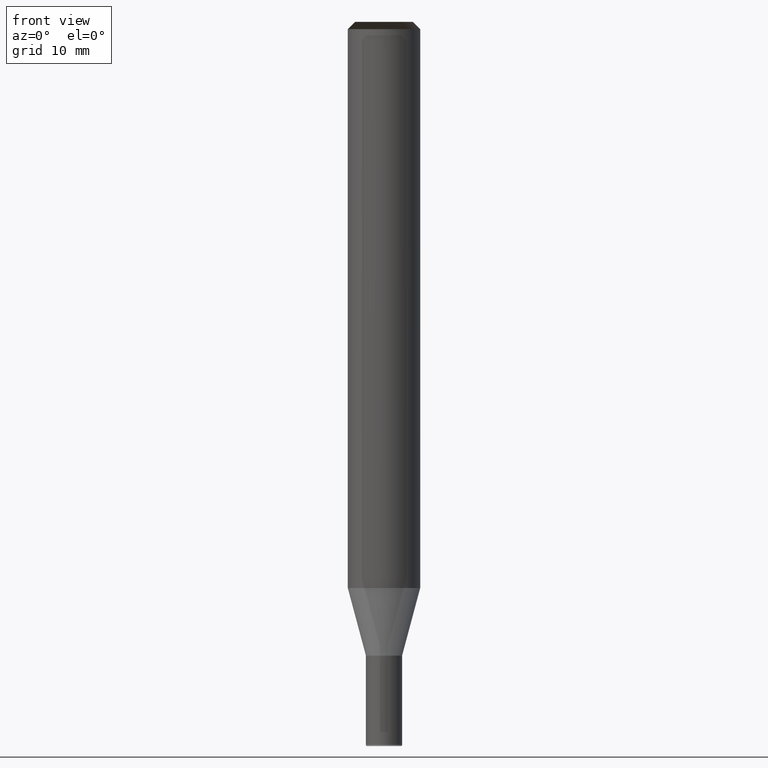
[diagram: clean part render]
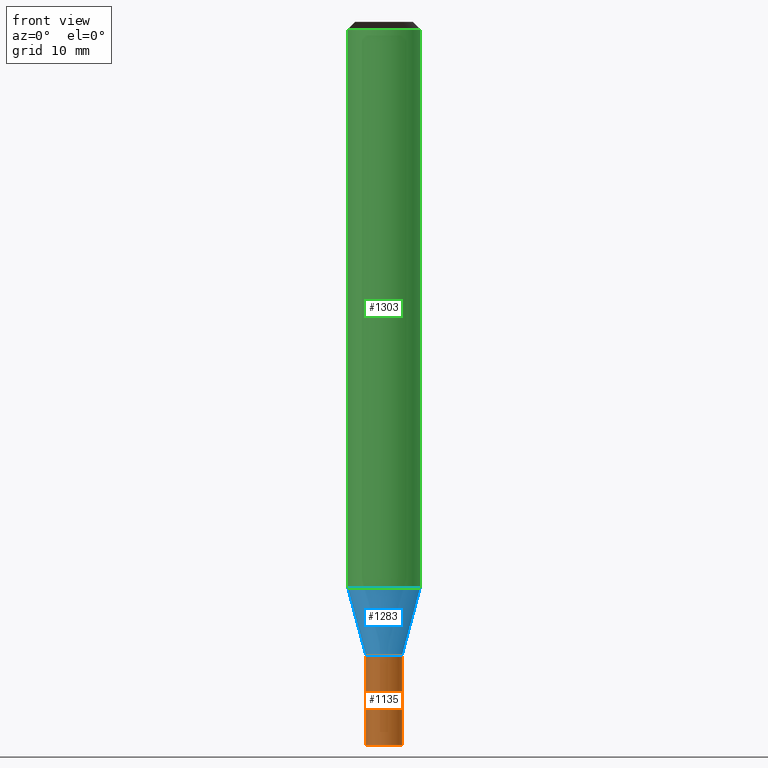
[diagram: same view with three faces highlighted in distinct colors, each labeled with its STEP entity id]
A machine part, front view with three faces highlighted in distinct colors.
Their STEP definitions:

[orange] entity #1135 — the highlighted face is a freeform B-spline surface patch.
#945=CARTESIAN_POINT('',(1.5,0.0,-12.998076211353));
#949=CARTESIAN_POINT('',(-1.5,0.0,-12.998076211353));
#950=CARTESIAN_POINT('',(1.5,0.0,-5.598076211353));
#954=CARTESIAN_POINT('',(-1.5,0.0,-5.598076211353));
#968=CARTESIAN_POINT('',(-1.5,-1.5,-12.998076211353));
#969=CARTESIAN_POINT('',(0.0,-1.5,-12.998076211353));
#970=CARTESIAN_POINT('',(1.5,-1.5,-12.998076211353));
#971=CARTESIAN_POINT('',(-1.5,-1.5,-5.598076211353));
#972=CARTESIAN_POINT('',(0.0,-1.5,-5.598076211353));
#973=CARTESIAN_POINT('',(1.5,-1.5,-5.598076211353));
#1116=(
BOUNDED_SURFACE()
B_SPLINE_SURFACE(1,2,(
(#949,#968,#969,#970,#945),
(#954,#971,#972,#973,#950)
), .UNSPECIFIED.,.F.,.F.,.F.)
B_SPLINE_SURFACE_WITH_KNOTS((2,2),(3,2,3),(
0.0,1.0),(
0.0,0.5,1.0), .UNSPECIFIED.)
GEOMETRIC_REPRESENTATION_ITEM()
RATIONAL_B_SPLINE_SURFACE(((1.0,0.707106781187,1.0,0.707106781187,1.0),
(1.0,0.707106781187,1.0,0.707106781187,1.0)
))
REPRESENTATION_ITEM('')
SURFACE()
);
#1117=(
BOUNDED_CURVE()
B_SPLINE_CURVE(1,(#954,#949),.UNSPECIFIED.,.F.,.F.)
B_SPLINE_CURVE_WITH_KNOTS((2,2),
(0.0,1.0),.UNSPECIFIED.)
CURVE()
GEOMETRIC_REPRESENTATION_ITEM()
RATIONAL_B_SPLINE_CURVE((1.0,1.0))
REPRESENTATION_ITEM('')
);
#1118=(
BOUNDED_CURVE()
B_SPLINE_CURVE(2,(#949,#968,#969,#970,#945),.UNSPECIFIED.,.F.,.F.)
B_SPLINE_CURVE_WITH_KNOTS((3,2,3),
(0.0,0.5,1.0),.UNSPECIFIED.)
CURVE()
GEOMETRIC_REPRESENTATION_ITEM()
RATIONAL_B_SPLINE_CURVE((1.0,0.707106781187,1.0,0.707106781187,1.0))
REPRESENTATION_ITEM('')
);
#1119=(
BOUNDED_CURVE()
B_SPLINE_CURVE(1,(#945,#950),.UNSPECIFIED.,.F.,.F.)
B_SPLINE_CURVE_WITH_KNOTS((2,2),
(0.0,1.0),.UNSPECIFIED.)
CURVE()
GEOMETRIC_REPRESENTATION_ITEM()
RATIONAL_B_SPLINE_CURVE((1.0,1.0))
REPRESENTATION_ITEM('')
);
#1120=(
BOUNDED_CURVE()
B_SPLINE_CURVE(2,(#950,#973,#972,#971,#954),.UNSPECIFIED.,.F.,.F.)
B_SPLINE_CURVE_WITH_KNOTS((3,2,3),
(0.0,0.5,1.0),.UNSPECIFIED.)
CURVE()
GEOMETRIC_REPRESENTATION_ITEM()
RATIONAL_B_SPLINE_CURVE((1.0,0.707106781187,1.0,0.707106781187,1.0))
REPRESENTATION_ITEM('')
);
#1121=VERTEX_POINT('',#945);
#1122=VERTEX_POINT('',#949);
#1123=VERTEX_POINT('',#950);
#1124=VERTEX_POINT('',#954);
#1125=EDGE_CURVE('',#1124,#1122,#1117,.T.);
#1126=EDGE_CURVE('',#1122,#1121,#1118,.T.);
#1127=EDGE_CURVE('',#1121,#1123,#1119,.T.);
#1128=EDGE_CURVE('',#1123,#1124,#1120,.T.);
#1129=ORIENTED_EDGE('',*,*,#1125,.T.);
#1130=ORIENTED_EDGE('',*,*,#1126,.T.);
#1131=ORIENTED_EDGE('',*,*,#1127,.T.);
#1132=ORIENTED_EDGE('',*,*,#1128,.T.);
#1133=EDGE_LOOP('',(#1129,#1130,#1131,#1132));
#1134=FACE_OUTER_BOUND('',#1133,.T.);
#1135=ADVANCED_FACE('',(#1134),#1116,.T.);

[blue] entity #1283 — the highlighted face is a freeform B-spline surface patch.
#950=CARTESIAN_POINT('',(1.5,0.0,-5.598076211353));
#954=CARTESIAN_POINT('',(-1.5,0.0,-5.598076211353));
#971=CARTESIAN_POINT('',(-1.5,-1.5,-5.598076211353));
#972=CARTESIAN_POINT('',(0.0,-1.5,-5.598076211353));
#973=CARTESIAN_POINT('',(1.5,-1.5,-5.598076211353));
#974=CARTESIAN_POINT('',(3.0,0.0,-0.0));
#978=CARTESIAN_POINT('',(-3.0,0.0,-0.0));
#990=CARTESIAN_POINT('',(-3.0,-3.0,-0.0));
#991=CARTESIAN_POINT('',(0.0,-3.0,-0.0));
#992=CARTESIAN_POINT('',(3.0,-3.0,-0.0));
#1264=(
BOUNDED_SURFACE()
B_SPLINE_SURFACE(1,2,(
(#954,#971,#972,#973,#950),
(#978,#990,#991,#992,#974)
), .UNSPECIFIED.,.F.,.F.,.F.)
B_SPLINE_SURFACE_WITH_KNOTS((2,2),(3,2,3),(
0.0,1.0),(
0.0,0.5,1.0), .UNSPECIFIED.)
GEOMETRIC_REPRESENTATION_ITEM()
RATIONAL_B_SPLINE_SURFACE(((1.0,0.707106781187,1.0,0.707106781187,1.0),
(1.0,0.707106781187,1.0,0.707106781187,1.0)
))
REPRESENTATION_ITEM('')
SURFACE()
);
#1265=(
BOUNDED_CURVE()
B_SPLINE_CURVE(1,(#978,#954),.UNSPECIFIED.,.F.,.F.)
B_SPLINE_CURVE_WITH_KNOTS((2,2),
(0.0,1.0),.UNSPECIFIED.)
CURVE()
GEOMETRIC_REPRESENTATION_ITEM()
RATIONAL_B_SPLINE_CURVE((1.0,1.0))
REPRESENTATION_ITEM('')
);
#1266=(
BOUNDED_CURVE()
B_SPLINE_CURVE(2,(#954,#971,#972,#973,#950),.UNSPECIFIED.,.F.,.F.)
B_SPLINE_CURVE_WITH_KNOTS((3,2,3),
(0.0,0.5,1.0),.UNSPECIFIED.)
CURVE()
GEOMETRIC_REPRESENTATION_ITEM()
RATIONAL_B_SPLINE_CURVE((1.0,0.707106781187,1.0,0.707106781187,1.0))
REPRESENTATION_ITEM('')
);
#1267=(
BOUNDED_CURVE()
B_SPLINE_CURVE(1,(#950,#974),.UNSPECIFIED.,.F.,.F.)
B_SPLINE_CURVE_WITH_KNOTS((2,2),
(0.0,1.0),.UNSPECIFIED.)
CURVE()
GEOMETRIC_REPRESENTATION_ITEM()
RATIONAL_B_SPLINE_CURVE((1.0,1.0))
REPRESENTATION_ITEM('')
);
#1268=(
BOUNDED_CURVE()
B_SPLINE_CURVE(2,(#974,#992,#991,#990,#978),.UNSPECIFIED.,.F.,.F.)
B_SPLINE_CURVE_WITH_KNOTS((3,2,3),
(0.0,0.5,1.0),.UNSPECIFIED.)
CURVE()
GEOMETRIC_REPRESENTATION_ITEM()
RATIONAL_B_SPLINE_CURVE((1.0,0.707106781187,1.0,0.707106781187,1.0))
REPRESENTATION_ITEM('')
);
#1269=VERTEX_POINT('',#950);
#1270=VERTEX_POINT('',#954);
#1271=VERTEX_POINT('',#974);
#1272=VERTEX_POINT('',#978);
#1273=EDGE_CURVE('',#1272,#1270,#1265,.T.);
#1274=EDGE_CURVE('',#1270,#1269,#1266,.T.);
#1275=EDGE_CURVE('',#1269,#1271,#1267,.T.);
#1276=EDGE_CURVE('',#1271,#1272,#1268,.T.);
#1277=ORIENTED_EDGE('',*,*,#1273,.T.);
#1278=ORIENTED_EDGE('',*,*,#1274,.T.);
#1279=ORIENTED_EDGE('',*,*,#1275,.T.);
#1280=ORIENTED_EDGE('',*,*,#1276,.T.);
#1281=EDGE_LOOP('',(#1277,#1278,#1279,#1280));
#1282=FACE_OUTER_BOUND('',#1281,.T.);
#1283=ADVANCED_FACE('',(#1282),#1264,.T.);

[green] entity #1303 — the highlighted face is a freeform B-spline surface patch.
#974=CARTESIAN_POINT('',(3.0,0.0,-0.0));
#978=CARTESIAN_POINT('',(-3.0,0.0,-0.0));
#979=CARTESIAN_POINT('',(3.0,0.0,46.301923788647));
#983=CARTESIAN_POINT('',(-3.0,0.0,46.301923788647));
#990=CARTESIAN_POINT('',(-3.0,-3.0,-0.0));
#991=CARTESIAN_POINT('',(0.0,-3.0,-0.0));
#992=CARTESIAN_POINT('',(3.0,-3.0,-0.0));
#993=CARTESIAN_POINT('',(-3.0,-3.0,46.301923788647));
#994=CARTESIAN_POINT('',(0.0,-3.0,46.301923788647));
#995=CARTESIAN_POINT('',(3.0,-3.0,46.301923788647));
#1284=(
BOUNDED_SURFACE()
B_SPLINE_SURFACE(1,2,(
(#978,#990,#991,#992,#974),
(#983,#993,#994,#995,#979)
), .UNSPECIFIED.,.F.,.F.,.F.)
B_SPLINE_SURFACE_WITH_KNOTS((2,2),(3,2,3),(
0.0,1.0),(
0.0,0.5,1.0), .UNSPECIFIED.)
GEOMETRIC_REPRESENTATION_ITEM()
RATIONAL_B_SPLINE_SURFACE(((1.0,0.707106781187,1.0,0.707106781187,1.0),
(1.0,0.707106781187,1.0,0.707106781187,1.0)
))
REPRESENTATION_ITEM('')
SURFACE()
);
#1285=(
BOUNDED_CURVE()
B_SPLINE_CURVE(1,(#983,#978),.UNSPECIFIED.,.F.,.F.)
B_SPLINE_CURVE_WITH_KNOTS((2,2),
(0.0,1.0),.UNSPECIFIED.)
CURVE()
GEOMETRIC_REPRESENTATION_ITEM()
RATIONAL_B_SPLINE_CURVE((1.0,1.0))
REPRESENTATION_ITEM('')
);
#1286=(
BOUNDED_CURVE()
B_SPLINE_CURVE(2,(#978,#990,#991,#992,#974),.UNSPECIFIED.,.F.,.F.)
B_SPLINE_CURVE_WITH_KNOTS((3,2,3),
(0.0,0.5,1.0),.UNSPECIFIED.)
CURVE()
GEOMETRIC_REPRESENTATION_ITEM()
RATIONAL_B_SPLINE_CURVE((1.0,0.707106781187,1.0,0.707106781187,1.0))
REPRESENTATION_ITEM('')
);
#1287=(
BOUNDED_CURVE()
B_SPLINE_CURVE(1,(#974,#979),.UNSPECIFIED.,.F.,.F.)
B_SPLINE_CURVE_WITH_KNOTS((2,2),
(0.0,1.0),.UNSPECIFIED.)
CURVE()
GEOMETRIC_REPRESENTATION_ITEM()
RATIONAL_B_SPLINE_CURVE((1.0,1.0))
REPRESENTATION_ITEM('')
);
#1288=(
BOUNDED_CURVE()
B_SPLINE_CURVE(2,(#979,#995,#994,#993,#983),.UNSPECIFIED.,.F.,.F.)
B_SPLINE_CURVE_WITH_KNOTS((3,2,3),
(0.0,0.5,1.0),.UNSPECIFIED.)
CURVE()
GEOMETRIC_REPRESENTATION_ITEM()
RATIONAL_B_SPLINE_CURVE((1.0,0.707106781187,1.0,0.707106781187,1.0))
REPRESENTATION_ITEM('')
);
#1289=VERTEX_POINT('',#974);
#1290=VERTEX_POINT('',#978);
#1291=VERTEX_POINT('',#979);
#1292=VERTEX_POINT('',#983);
#1293=EDGE_CURVE('',#1292,#1290,#1285,.T.);
#1294=EDGE_CURVE('',#1290,#1289,#1286,.T.);
#1295=EDGE_CURVE('',#1289,#1291,#1287,.T.);
#1296=EDGE_CURVE('',#1291,#1292,#1288,.T.);
#1297=ORIENTED_EDGE('',*,*,#1293,.T.);
#1298=ORIENTED_EDGE('',*,*,#1294,.T.);
#1299=ORIENTED_EDGE('',*,*,#1295,.T.);
#1300=ORIENTED_EDGE('',*,*,#1296,.T.);
#1301=EDGE_LOOP('',(#1297,#1298,#1299,#1300));
#1302=FACE_OUTER_BOUND('',#1301,.T.);
#1303=ADVANCED_FACE('',(#1302),#1284,.T.);